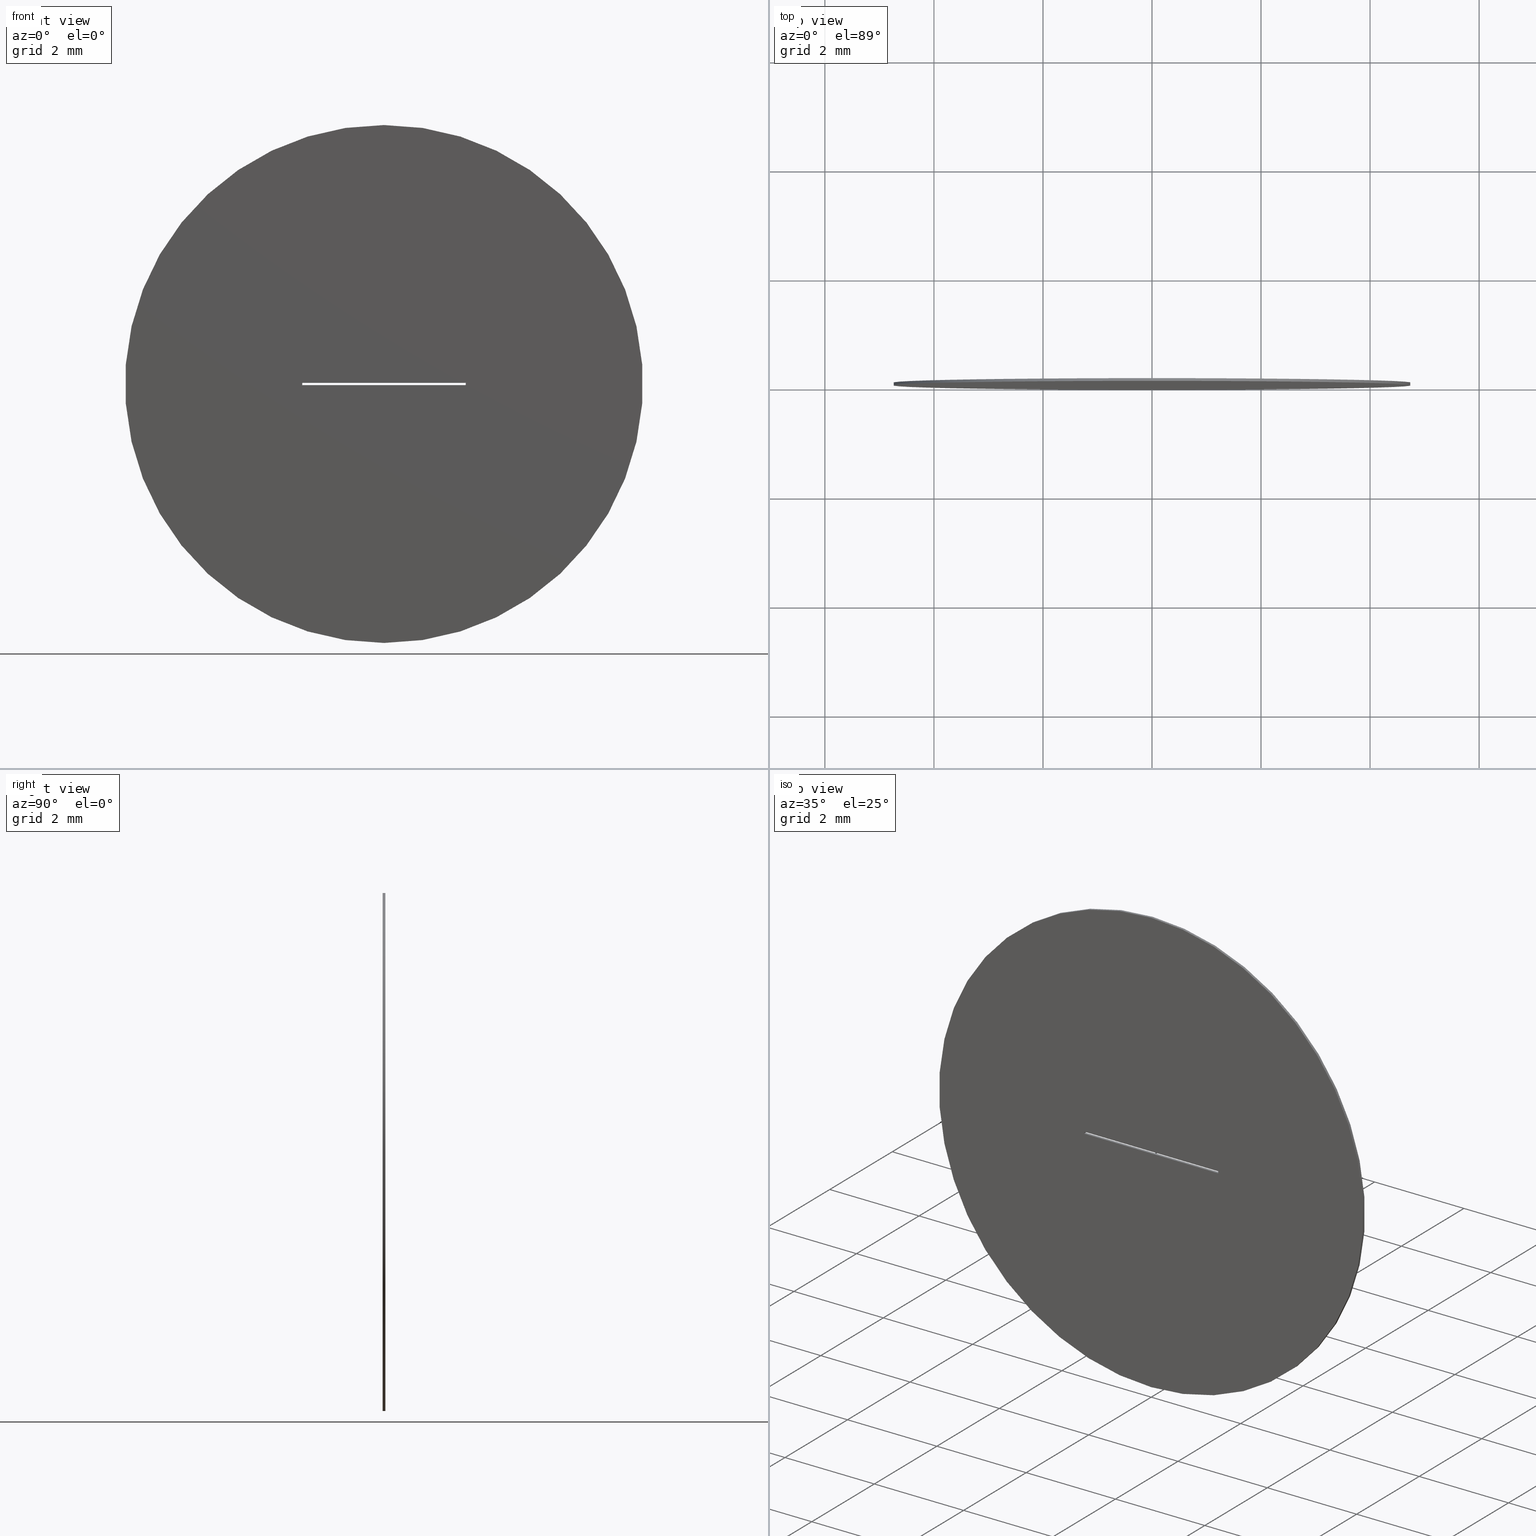
[diagram: canonical four-view strip — front | top / right | iso, engineering-drawing reading convention]
A machine part, canonical four-view strip (front | top / right | iso — engineering-drawing reading convention). The complete STEP part file that produces these views, byte-faithful:
ISO-10303-21;
HEADER;
FILE_DESCRIPTION (( 'STEP AP203' ),
    '1' );
FILE_NAME ('1.5.4.6-ZXG-9.5-40.STEP',
    '2024-05-29T06:48:43',
    ( '' ),
    ( '' ),
    'SwSTEP 2.0',
    'SolidWorks 2021',
    '' );
FILE_SCHEMA (( 'CONFIG_CONTROL_DESIGN' ));
ENDSEC;

DATA;
#1 = VERTEX_POINT ( 'NONE', #149 ) ;
#2 = PRODUCT_DEFINITION ( 'δ֪', '', #209, #8 ) ;
#3 = DIRECTION ( 'NONE',  ( 0.000000000000000000, 0.000000000000000000, 1.000000000000000000 ) ) ;
#4 = VECTOR ( 'NONE', #190, 1000.000000000000000 ) ;
#5 = AXIS2_PLACEMENT_3D ( 'NONE', #64, #42, #48 ) ;
#6 = EDGE_LOOP ( 'NONE', ( #270, #183, #268, #31 ) ) ;
#7 = DIRECTION ( 'NONE',  ( 0.000000000000000000, 0.000000000000000000, 1.000000000000000000 ) ) ;
#8 = DESIGN_CONTEXT ( 'detailed design', #235, 'design' ) ;
#9 = DIRECTION ( 'NONE',  ( 0.000000000000000000, 1.000000000000000000, 0.000000000000000000 ) ) ;
#10 = CARTESIAN_POINT ( 'NONE',  ( -1.500000000000000222, 0.05000000000000000278, -0.01999999999999999695 ) ) ;
#11 = CC_DESIGN_DATE_AND_TIME_ASSIGNMENT ( #233, #95, ( #35 ) ) ;
#12 = AXIS2_PLACEMENT_3D ( 'NONE', #218, #219, #191 ) ;
#13 = APPROVAL_PERSON_ORGANIZATION ( #303, #66, #165 ) ;
#14 = CARTESIAN_POINT ( 'NONE',  ( 1.499999999999999778, 0.05000000000000000278, -0.01999999999999999695 ) ) ;
#15 = EDGE_CURVE ( 'NONE', #1, #94, #248, .T. ) ;
#16 = DIRECTION ( 'NONE',  ( 0.000000000000000000, 0.000000000000000000, 1.000000000000000000 ) ) ;
#17 = PLANE ( 'NONE',  #199 ) ;
#18 = PRODUCT ( '1.5.4.6-ZXG-9.5-40', '1.5.4.6-ZXG-9.5-40', '', ( #188 ) ) ;
#19 = EDGE_LOOP ( 'NONE', ( #59, #187, #50, #96 ) ) ;
#20 = PERSON_AND_ORGANIZATION_ROLE ( 'creator' ) ;
#21 = DATE_AND_TIME ( #65, #113 ) ;
#22 = CALENDAR_DATE ( 2024, 29, 5 ) ;
#23 = ORIENTED_EDGE ( 'NONE', *, *, #70, .F. ) ;
#24 = ADVANCED_BREP_SHAPE_REPRESENTATION ( '1.5.4.6-ZXG-9.5-40', ( #140, #103 ), #163 ) ;
#25 = APPROVAL_DATE_TIME ( #91, #210 ) ;
#26 = AXIS2_PLACEMENT_3D ( 'NONE', #134, #62, #226 ) ;
#27 = ORIENTED_EDGE ( 'NONE', *, *, #247, .T. ) ;
#28 = PRODUCT_RELATED_PRODUCT_CATEGORY ( 'detail', '', ( #18 ) ) ;
#29 = CARTESIAN_POINT ( 'NONE',  ( 0.000000000000000000, 0.000000000000000000, 0.000000000000000000 ) ) ;
#30 = LINE ( 'NONE', #216, #43 ) ;
#31 = ORIENTED_EDGE ( 'NONE', *, *, #256, .T. ) ;
#32 = EDGE_LOOP ( 'NONE', ( #307, #126, #185, #249 ) ) ;
#33 = FACE_BOUND ( 'NONE', #6, .T. ) ;
#34 = CARTESIAN_POINT ( 'NONE',  ( 1.499999999999999778, 0.000000000000000000, 0.02000000000000000389 ) ) ;
#35 = SECURITY_CLASSIFICATION ( '', '', #306 ) ;
#36 = CC_DESIGN_PERSON_AND_ORGANIZATION_ASSIGNMENT ( #305, #164, ( #18 ) ) ;
#37 = FACE_OUTER_BOUND ( 'NONE', #234, .T. ) ;
#38 = DIRECTION ( 'NONE',  ( 1.000000000000000000, 0.000000000000000000, -0.000000000000000000 ) ) ;
#39 = FACE_OUTER_BOUND ( 'NONE', #32, .T. ) ;
#40 = VECTOR ( 'NONE', #130, 1000.000000000000000 ) ;
#41 = CC_DESIGN_APPROVAL ( #250, ( #2 ) ) ;
#42 = DIRECTION ( 'NONE',  ( 0.000000000000000000, 1.000000000000000000, 0.000000000000000000 ) ) ;
#43 = VECTOR ( 'NONE', #171, 1000.000000000000000 ) ;
#44 = VECTOR ( 'NONE', #211, 1000.000000000000000 ) ;
#45 = PRODUCT_DEFINITION_SHAPE ( 'NONE', 'NONE',  #2 ) ;
#46 = APPLICATION_PROTOCOL_DEFINITION ( 'international standard', 'config_control_design', 1994, #228 ) ;
#47 = ORIENTED_EDGE ( 'NONE', *, *, #256, .F. ) ;
#48 = DIRECTION ( 'NONE',  ( 0.000000000000000000, -0.000000000000000000, 1.000000000000000000 ) ) ;
#49 = PERSON_AND_ORGANIZATION_ROLE ( 'design_supplier' ) ;
#50 = ORIENTED_EDGE ( 'NONE', *, *, #152, .T. ) ;
#51 = DIRECTION ( 'NONE',  ( 1.000000000000000000, 0.000000000000000000, 0.000000000000000000 ) ) ;
#52 = ORIENTED_EDGE ( 'NONE', *, *, #293, .T. ) ;
#53 =( LENGTH_UNIT ( ) NAMED_UNIT ( * ) SI_UNIT ( .MILLI., .METRE. ) );
#54 = COORDINATED_UNIVERSAL_TIME_OFFSET ( 8, 0, .AHEAD. ) ;
#55 = ORIENTED_EDGE ( 'NONE', *, *, #298, .F. ) ;
#56 = DIRECTION ( 'NONE',  ( -1.000000000000000000, -0.000000000000000000, -0.000000000000000000 ) ) ;
#57 = CC_DESIGN_APPROVAL ( #66, ( #209 ) ) ;
#58 = VERTEX_POINT ( 'NONE', #174 ) ;
#59 = ORIENTED_EDGE ( 'NONE', *, *, #109, .F. ) ;
#60 = VECTOR ( 'NONE', #56, 1000.000000000000000 ) ;
#61 = CARTESIAN_POINT ( 'NONE',  ( -1.500000000000000222, 0.000000000000000000, 0.02000000000000000389 ) ) ;
#62 = DIRECTION ( 'NONE',  ( 0.000000000000000000, 1.000000000000000000, 0.000000000000000000 ) ) ;
#63 = CC_DESIGN_APPROVAL ( #210, ( #35 ) ) ;
#64 = CARTESIAN_POINT ( 'NONE',  ( 0.000000000000000000, 0.05000000000000000278, 0.000000000000000000 ) ) ;
#65 = CALENDAR_DATE ( 2024, 29, 5 ) ;
#66 = APPROVAL ( #287, 'δָ��' ) ;
#67 = DATE_AND_TIME ( #262, #186 ) ;
#68 = DATE_AND_TIME ( #284, #77 ) ;
#69 = ORIENTED_EDGE ( 'NONE', *, *, #298, .T. ) ;
#70 = EDGE_CURVE ( 'NONE', #169, #138, #124, .T. ) ;
#71 = LINE ( 'NONE', #119, #217 ) ;
#72 = VERTEX_POINT ( 'NONE', #104 ) ;
#73 = LOCAL_TIME ( 14, 48, 43.00000000000000000, #264 ) ;
#74 = LINE ( 'NONE', #193, #136 ) ;
#75 = ORIENTED_EDGE ( 'NONE', *, *, #247, .F. ) ;
#76 = ORIENTED_EDGE ( 'NONE', *, *, #277, .F. ) ;
#77 = LOCAL_TIME ( 14, 48, 43.00000000000000000, #54 ) ;
#78 = FACE_OUTER_BOUND ( 'NONE', #166, .T. ) ;
#79 = EDGE_CURVE ( 'NONE', #1, #282, #151, .T. ) ;
#80 = DIRECTION ( 'NONE',  ( 0.000000000000000000, 1.000000000000000000, 0.000000000000000000 ) ) ;
#81 = DIRECTION ( 'NONE',  ( 1.000000000000000000, 0.000000000000000000, 0.000000000000000000 ) ) ;
#82 = LOCAL_TIME ( 14, 48, 43.00000000000000000, #212 ) ;
#83 = DIRECTION ( 'NONE',  ( 0.000000000000000000, 1.000000000000000000, 0.000000000000000000 ) ) ;
#84 = EDGE_CURVE ( 'NONE', #92, #58, #173, .T. ) ;
#85 = CARTESIAN_POINT ( 'NONE',  ( 1.499999999999999778, 0.05000000000000000278, -0.01999999999999999695 ) ) ;
#86 = LINE ( 'NONE', #223, #143 ) ;
#87 = EDGE_CURVE ( 'NONE', #138, #169, #276, .T. ) ;
#88 = CARTESIAN_POINT ( 'NONE',  ( 0.000000000000000000, 0.05000000000000000278, 0.000000000000000000 ) ) ;
#89 = ORIENTED_EDGE ( 'NONE', *, *, #293, .F. ) ;
#90 =( NAMED_UNIT ( * ) SI_UNIT ( $, .STERADIAN. ) SOLID_ANGLE_UNIT ( ) );
#91 = DATE_AND_TIME ( #239, #82 ) ;
#92 = VERTEX_POINT ( 'NONE', #99 ) ;
#93 = APPROVAL_STATUS ( 'not_yet_approved' ) ;
#94 = VERTEX_POINT ( 'NONE', #34 ) ;
#95 = DATE_TIME_ROLE ( 'classification_date' ) ;
#96 = ORIENTED_EDGE ( 'NONE', *, *, #269, .T. ) ;
#97 = AXIS2_PLACEMENT_3D ( 'NONE', #88, #137, #214 ) ;
#98 = EDGE_LOOP ( 'NONE', ( #120, #142 ) ) ;
#99 = CARTESIAN_POINT ( 'NONE',  ( 1.499999999999999778, 0.000000000000000000, -0.01999999999999999695 ) ) ;
#100 = UNCERTAINTY_MEASURE_WITH_UNIT (LENGTH_MEASURE( 1.000000000000000082E-05 ), #53, 'distance_accuracy_value', 'NONE');
#101 = DIRECTION ( 'NONE',  ( 1.000000000000000000, 0.000000000000000000, 0.000000000000000000 ) ) ;
#102 = DIRECTION ( 'NONE',  ( 0.000000000000000000, -0.000000000000000000, 1.000000000000000000 ) ) ;
#103 = AXIS2_PLACEMENT_3D ( 'NONE', #29, #310, #285 ) ;
#104 = CARTESIAN_POINT ( 'NONE',  ( 0.000000000000000000, 0.000000000000000000, -4.750000000000000000 ) ) ;
#105 = CYLINDRICAL_SURFACE ( 'NONE', #208, 4.750000000000000000 ) ;
#106 = DIRECTION ( 'NONE',  ( -1.000000000000000000, -0.000000000000000000, -0.000000000000000000 ) ) ;
#107 = VECTOR ( 'NONE', #291, 1000.000000000000000 ) ;
#108 = VECTOR ( 'NONE', #253, 1000.000000000000000 ) ;
#109 = EDGE_CURVE ( 'NONE', #58, #265, #275, .T. ) ;
#110 = LINE ( 'NONE', #154, #108 ) ;
#111 = DIRECTION ( 'NONE',  ( -0.000000000000000000, -1.000000000000000000, -0.000000000000000000 ) ) ;
#112 = CARTESIAN_POINT ( 'NONE',  ( -1.500000000000000222, 0.05000000000000000278, -0.01999999999999999695 ) ) ;
#113 = LOCAL_TIME ( 14, 48, 43.00000000000000000, #121 ) ;
#114 = PERSON_AND_ORGANIZATION ( #202, #221 ) ;
#115 = EDGE_LOOP ( 'NONE', ( #75, #271, #89, #263 ) ) ;
#116 = LINE ( 'NONE', #141, #44 ) ;
#117 = PERSON_AND_ORGANIZATION ( #202, #221 ) ;
#118 = VERTEX_POINT ( 'NONE', #150 ) ;
#119 = CARTESIAN_POINT ( 'NONE',  ( -1.500000000000000222, 0.05000000000000000278, 0.02000000000000000389 ) ) ;
#120 = ORIENTED_EDGE ( 'NONE', *, *, #87, .T. ) ;
#121 = COORDINATED_UNIVERSAL_TIME_OFFSET ( 8, 0, .AHEAD. ) ;
#122 = CARTESIAN_POINT ( 'NONE',  ( -1.500000000000000222, 0.05000000000000000278, -0.01999999999999999695 ) ) ;
#123 = ADVANCED_FACE ( 'NONE', ( #292 ), #172, .T. ) ;
#124 = CIRCLE ( 'NONE', #156, 4.750000000000000000 ) ;
#125 = CARTESIAN_POINT ( 'NONE',  ( 0.000000000000000000, 0.05000000000000000278, 0.000000000000000000 ) ) ;
#126 = ORIENTED_EDGE ( 'NONE', *, *, #15, .F. ) ;
#127 = EDGE_CURVE ( 'NONE', #94, #92, #74, .T. ) ;
#128 = VERTEX_POINT ( 'NONE', #10 ) ;
#129 = DIRECTION ( 'NONE',  ( 0.000000000000000000, 0.000000000000000000, -1.000000000000000000 ) ) ;
#130 = DIRECTION ( 'NONE',  ( -0.000000000000000000, -1.000000000000000000, -0.000000000000000000 ) ) ;
#131 = LINE ( 'NONE', #112, #231 ) ;
#132 = FACE_OUTER_BOUND ( 'NONE', #145, .T. ) ;
#133 = AXIS2_PLACEMENT_3D ( 'NONE', #220, #9, #102 ) ;
#134 = CARTESIAN_POINT ( 'NONE',  ( 0.000000000000000000, 0.000000000000000000, 0.000000000000000000 ) ) ;
#135 = CARTESIAN_POINT ( 'NONE',  ( 0.000000000000000000, 0.05000000000000000278, -4.750000000000000000 ) ) ;
#136 = VECTOR ( 'NONE', #294, 1000.000000000000000 ) ;
#137 = DIRECTION ( 'NONE',  ( -0.000000000000000000, -1.000000000000000000, -0.000000000000000000 ) ) ;
#138 = VERTEX_POINT ( 'NONE', #272 ) ;
#139 = ADVANCED_FACE ( 'NONE', ( #195, #33 ), #175, .F. ) ;
#140 = MANIFOLD_SOLID_BREP ( '͹̨-����1', #170 ) ;
#141 = CARTESIAN_POINT ( 'NONE',  ( 5.817072295949927426E-16, 0.05000000000000000278, 4.750000000000000000 ) ) ;
#142 = ORIENTED_EDGE ( 'NONE', *, *, #70, .T. ) ;
#143 = VECTOR ( 'NONE', #111, 1000.000000000000000 ) ;
#144 = CIRCLE ( 'NONE', #26, 4.750000000000000000 ) ;
#145 = EDGE_LOOP ( 'NONE', ( #215, #240, #27, #304 ) ) ;
#146 = ADVANCED_FACE ( 'NONE', ( #78 ), #296, .T. ) ;
#147 = CARTESIAN_POINT ( 'NONE',  ( -1.500000000000000222, 0.05000000000000000278, 0.02000000000000000389 ) ) ;
#148 = ORIENTED_EDGE ( 'NONE', *, *, #269, .F. ) ;
#149 = CARTESIAN_POINT ( 'NONE',  ( 1.499999999999999778, 0.05000000000000000278, 0.02000000000000000389 ) ) ;
#150 = CARTESIAN_POINT ( 'NONE',  ( 5.817072295949927426E-16, 0.000000000000000000, 4.750000000000000000 ) ) ;
#151 = LINE ( 'NONE', #295, #107 ) ;
#152 = EDGE_CURVE ( 'NONE', #128, #260, #30, .T. ) ;
#153 = PLANE ( 'NONE',  #162 ) ;
#154 = CARTESIAN_POINT ( 'NONE',  ( -1.500000000000000222, 0.05000000000000000278, 0.02000000000000000389 ) ) ;
#155 = CARTESIAN_POINT ( 'NONE',  ( 5.817072295949927426E-16, 0.05000000000000000278, 4.750000000000000000 ) ) ;
#156 = AXIS2_PLACEMENT_3D ( 'NONE', #125, #80, #3 ) ;
#157 = CC_DESIGN_DATE_AND_TIME_ASSIGNMENT ( #68, #236, ( #2 ) ) ;
#158 = CARTESIAN_POINT ( 'NONE',  ( 0.000000000000000000, 0.000000000000000000, 0.000000000000000000 ) ) ;
#159 =( NAMED_UNIT ( * ) PLANE_ANGLE_UNIT ( ) SI_UNIT ( $, .RADIAN. ) );
#160 = APPROVAL_ROLE ( '' ) ;
#161 = ORIENTED_EDGE ( 'NONE', *, *, #266, .F. ) ;
#162 = AXIS2_PLACEMENT_3D ( 'NONE', #297, #252, #201 ) ;
#163 =( GEOMETRIC_REPRESENTATION_CONTEXT ( 3 ) GLOBAL_UNCERTAINTY_ASSIGNED_CONTEXT ( ( #100 ) ) GLOBAL_UNIT_ASSIGNED_CONTEXT ( ( #53, #159, #90 ) ) REPRESENTATION_CONTEXT ( 'NONE', 'WORKASPACE' ) );
#164 = PERSON_AND_ORGANIZATION_ROLE ( 'design_owner' ) ;
#165 = APPROVAL_ROLE ( '' ) ;
#166 = EDGE_LOOP ( 'NONE', ( #47, #148, #52, #289 ) ) ;
#167 = APPLICATION_PROTOCOL_DEFINITION ( 'international standard', 'config_control_design', 1994, #235 ) ;
#168 = PERSON_AND_ORGANIZATION_ROLE ( 'classification_officer' ) ;
#169 = VERTEX_POINT ( 'NONE', #155 ) ;
#170 = CLOSED_SHELL ( 'NONE', ( #308, #283, #139, #197, #176, #192, #123, #146 ) ) ;
#171 = DIRECTION ( 'NONE',  ( 0.000000000000000000, 0.000000000000000000, 1.000000000000000000 ) ) ;
#172 = PLANE ( 'NONE',  #258 ) ;
#173 = LINE ( 'NONE', #251, #60 ) ;
#174 = CARTESIAN_POINT ( 'NONE',  ( -1.500000000000000222, 0.000000000000000000, -0.01999999999999999695 ) ) ;
#175 = PLANE ( 'NONE',  #133 ) ;
#176 = ADVANCED_FACE ( 'NONE', ( #39 ), #153, .T. ) ;
#177 = AXIS2_PLACEMENT_3D ( 'NONE', #147, #274, #245 ) ;
#178 = DIRECTION ( 'NONE',  ( 0.000000000000000000, 0.000000000000000000, 1.000000000000000000 ) ) ;
#179 = FACE_OUTER_BOUND ( 'NONE', #98, .T. ) ;
#180 = PLANE ( 'NONE',  #5 ) ;
#181 = CIRCLE ( 'NONE', #259, 4.750000000000000000 ) ;
#182 = FACE_OUTER_BOUND ( 'NONE', #309, .T. ) ;
#183 = ORIENTED_EDGE ( 'NONE', *, *, #84, .T. ) ;
#184 = CC_DESIGN_PERSON_AND_ORGANIZATION_ASSIGNMENT ( #302, #189, ( #2 ) ) ;
#185 = ORIENTED_EDGE ( 'NONE', *, *, #79, .T. ) ;
#186 = LOCAL_TIME ( 14, 48, 43.00000000000000000, #267 ) ;
#187 = ORIENTED_EDGE ( 'NONE', *, *, #237, .F. ) ;
#188 = MECHANICAL_CONTEXT ( 'NONE', #228, 'mechanical' ) ;
#189 = PERSON_AND_ORGANIZATION_ROLE ( 'creator' ) ;
#190 = DIRECTION ( 'NONE',  ( -0.000000000000000000, -1.000000000000000000, -0.000000000000000000 ) ) ;
#191 = DIRECTION ( 'NONE',  ( 0.000000000000000000, 0.000000000000000000, 1.000000000000000000 ) ) ;
#192 = ADVANCED_FACE ( 'NONE', ( #132 ), #17, .T. ) ;
#193 = CARTESIAN_POINT ( 'NONE',  ( 1.499999999999999778, 0.000000000000000000, -0.01999999999999999695 ) ) ;
#194 = APPROVAL_PERSON_ORGANIZATION ( #311, #210, #160 ) ;
#195 = FACE_OUTER_BOUND ( 'NONE', #288, .T. ) ;
#196 = CARTESIAN_POINT ( 'NONE',  ( -1.500000000000000222, 0.000000000000000000, -0.01999999999999999695 ) ) ;
#197 = ADVANCED_FACE ( 'NONE', ( #37 ), #105, .T. ) ;
#198 = LINE ( 'NONE', #135, #279 ) ;
#199 = AXIS2_PLACEMENT_3D ( 'NONE', #280, #16, #38 ) ;
#200 = CARTESIAN_POINT ( 'NONE',  ( -1.500000000000000222, 0.05000000000000000278, 0.02000000000000000389 ) ) ;
#201 = DIRECTION ( 'NONE',  ( 0.000000000000000000, 0.000000000000000000, 1.000000000000000000 ) ) ;
#202 = PERSON ( 'δָ��', 'δָ��', 'δָ��', ('δָ��'), ('δָ��'), ('δָ��') ) ;
#203 = EDGE_CURVE ( 'NONE', #282, #92, #224, .T. ) ;
#204 = FACE_BOUND ( 'NONE', #115, .T. ) ;
#205 = APPROVAL_DATE_TIME ( #21, #250 ) ;
#206 = PERSON_AND_ORGANIZATION ( #202, #221 ) ;
#207 = APPROVAL_DATE_TIME ( #67, #66 ) ;
#208 = AXIS2_PLACEMENT_3D ( 'NONE', #255, #300, #278 ) ;
#209 = PRODUCT_DEFINITION_FORMATION_WITH_SPECIFIED_SOURCE ( '�κ�', '', #18, .NOT_KNOWN. ) ;
#210 = APPROVAL ( #93, 'δָ��' ) ;
#211 = DIRECTION ( 'NONE',  ( -0.000000000000000000, -1.000000000000000000, -0.000000000000000000 ) ) ;
#212 = COORDINATED_UNIVERSAL_TIME_OFFSET ( 8, 0, .AHEAD. ) ;
#213 = ORIENTED_EDGE ( 'NONE', *, *, #277, .T. ) ;
#214 = DIRECTION ( 'NONE',  ( 0.000000000000000000, 0.000000000000000000, -1.000000000000000000 ) ) ;
#215 = ORIENTED_EDGE ( 'NONE', *, *, #84, .F. ) ;
#216 = CARTESIAN_POINT ( 'NONE',  ( -1.500000000000000222, 0.05000000000000000278, -0.01999999999999999695 ) ) ;
#217 = VECTOR ( 'NONE', #51, 1000.000000000000000 ) ;
#218 = CARTESIAN_POINT ( 'NONE',  ( 0.000000000000000000, 0.05000000000000000278, 0.000000000000000000 ) ) ;
#219 = DIRECTION ( 'NONE',  ( 0.000000000000000000, 1.000000000000000000, 0.000000000000000000 ) ) ;
#220 = CARTESIAN_POINT ( 'NONE',  ( 0.000000000000000000, 0.000000000000000000, 0.000000000000000000 ) ) ;
#221 = ORGANIZATION ( 'δָ��', 'δָ��', '' ) ;
#222 = CARTESIAN_POINT ( 'NONE',  ( 1.499999999999999778, 0.05000000000000000278, 0.02000000000000000389 ) ) ;
#223 = CARTESIAN_POINT ( 'NONE',  ( -1.500000000000000222, 0.05000000000000000278, -0.01999999999999999695 ) ) ;
#224 = LINE ( 'NONE', #14, #40 ) ;
#225 = CC_DESIGN_PERSON_AND_ORGANIZATION_ASSIGNMENT ( #206, #49, ( #209 ) ) ;
#226 = DIRECTION ( 'NONE',  ( 0.000000000000000000, 0.000000000000000000, 1.000000000000000000 ) ) ;
#227 = LINE ( 'NONE', #61, #242 ) ;
#228 = APPLICATION_CONTEXT ( 'configuration controlled 3d designs of mechanical parts and assemblies' ) ;
#229 = APPROVAL_ROLE ( '' ) ;
#230 = EDGE_CURVE ( 'NONE', #138, #72, #198, .T. ) ;
#231 = VECTOR ( 'NONE', #106, 1000.000000000000000 ) ;
#232 = ORIENTED_EDGE ( 'NONE', *, *, #266, .T. ) ;
#233 = DATE_AND_TIME ( #22, #73 ) ;
#234 = EDGE_LOOP ( 'NONE', ( #55, #244, #246, #213 ) ) ;
#235 = APPLICATION_CONTEXT ( 'configuration controlled 3d designs of mechanical parts and assemblies' ) ;
#236 = DATE_TIME_ROLE ( 'creation_date' ) ;
#237 = EDGE_CURVE ( 'NONE', #128, #58, #86, .T. ) ;
#238 = CYLINDRICAL_SURFACE ( 'NONE', #97, 4.750000000000000000 ) ;
#239 = CALENDAR_DATE ( 2024, 29, 5 ) ;
#240 = ORIENTED_EDGE ( 'NONE', *, *, #203, .F. ) ;
#241 = VECTOR ( 'NONE', #7, 1000.000000000000000 ) ;
#242 = VECTOR ( 'NONE', #81, 1000.000000000000000 ) ;
#243 = APPROVAL_STATUS ( 'not_yet_approved' ) ;
#244 = ORIENTED_EDGE ( 'NONE', *, *, #87, .F. ) ;
#245 = DIRECTION ( 'NONE',  ( -1.000000000000000000, 0.000000000000000000, -0.000000000000000000 ) ) ;
#246 = ORIENTED_EDGE ( 'NONE', *, *, #230, .T. ) ;
#247 = EDGE_CURVE ( 'NONE', #282, #128, #131, .T. ) ;
#248 = LINE ( 'NONE', #222, #4 ) ;
#249 = ORIENTED_EDGE ( 'NONE', *, *, #203, .T. ) ;
#250 = APPROVAL ( #243, 'δָ��' ) ;
#251 = CARTESIAN_POINT ( 'NONE',  ( -1.500000000000000222, 0.000000000000000000, -0.01999999999999999695 ) ) ;
#252 = DIRECTION ( 'NONE',  ( -1.000000000000000000, 0.000000000000000000, 0.000000000000000000 ) ) ;
#253 = DIRECTION ( 'NONE',  ( -0.000000000000000000, -1.000000000000000000, -0.000000000000000000 ) ) ;
#254 = DIRECTION ( 'NONE',  ( -0.000000000000000000, -1.000000000000000000, -0.000000000000000000 ) ) ;
#255 = CARTESIAN_POINT ( 'NONE',  ( 0.000000000000000000, 0.05000000000000000278, 0.000000000000000000 ) ) ;
#256 = EDGE_CURVE ( 'NONE', #265, #94, #227, .T. ) ;
#257 = SHAPE_DEFINITION_REPRESENTATION ( #45, #24 ) ;
#258 = AXIS2_PLACEMENT_3D ( 'NONE', #122, #101, #129 ) ;
#259 = AXIS2_PLACEMENT_3D ( 'NONE', #158, #83, #178 ) ;
#260 = VERTEX_POINT ( 'NONE', #200 ) ;
#261 = PERSON_AND_ORGANIZATION ( #202, #221 ) ;
#262 = CALENDAR_DATE ( 2024, 29, 5 ) ;
#263 = ORIENTED_EDGE ( 'NONE', *, *, #152, .F. ) ;
#264 = COORDINATED_UNIVERSAL_TIME_OFFSET ( 8, 0, .AHEAD. ) ;
#265 = VERTEX_POINT ( 'NONE', #299 ) ;
#266 = EDGE_CURVE ( 'NONE', #118, #72, #181, .T. ) ;
#267 = COORDINATED_UNIVERSAL_TIME_OFFSET ( 8, 0, .AHEAD. ) ;
#268 = ORIENTED_EDGE ( 'NONE', *, *, #109, .T. ) ;
#269 = EDGE_CURVE ( 'NONE', #260, #265, #110, .T. ) ;
#270 = ORIENTED_EDGE ( 'NONE', *, *, #127, .T. ) ;
#271 = ORIENTED_EDGE ( 'NONE', *, *, #79, .F. ) ;
#272 = CARTESIAN_POINT ( 'NONE',  ( 0.000000000000000000, 0.05000000000000000278, -4.750000000000000000 ) ) ;
#273 = CC_DESIGN_PERSON_AND_ORGANIZATION_ASSIGNMENT ( #114, #20, ( #209 ) ) ;
#274 = DIRECTION ( 'NONE',  ( 0.000000000000000000, 0.000000000000000000, -1.000000000000000000 ) ) ;
#275 = LINE ( 'NONE', #196, #241 ) ;
#276 = CIRCLE ( 'NONE', #12, 4.750000000000000000 ) ;
#277 = EDGE_CURVE ( 'NONE', #72, #118, #144, .T. ) ;
#278 = DIRECTION ( 'NONE',  ( 0.000000000000000000, 0.000000000000000000, -1.000000000000000000 ) ) ;
#279 = VECTOR ( 'NONE', #254, 1000.000000000000000 ) ;
#280 = CARTESIAN_POINT ( 'NONE',  ( -1.500000000000000222, 0.05000000000000000278, -0.01999999999999999695 ) ) ;
#281 = CC_DESIGN_SECURITY_CLASSIFICATION ( #35, ( #209 ) ) ;
#282 = VERTEX_POINT ( 'NONE', #85 ) ;
#283 = ADVANCED_FACE ( 'NONE', ( #179, #204 ), #180, .T. ) ;
#284 = CALENDAR_DATE ( 2024, 29, 5 ) ;
#285 = DIRECTION ( 'NONE',  ( 1.000000000000000000, 0.000000000000000000, 0.000000000000000000 ) ) ;
#286 = ORIENTED_EDGE ( 'NONE', *, *, #230, .F. ) ;
#287 = APPROVAL_STATUS ( 'not_yet_approved' ) ;
#288 = EDGE_LOOP ( 'NONE', ( #76, #161 ) ) ;
#289 = ORIENTED_EDGE ( 'NONE', *, *, #15, .T. ) ;
#290 = CC_DESIGN_PERSON_AND_ORGANIZATION_ASSIGNMENT ( #117, #168, ( #35 ) ) ;
#291 = DIRECTION ( 'NONE',  ( -0.000000000000000000, -0.000000000000000000, -1.000000000000000000 ) ) ;
#292 = FACE_OUTER_BOUND ( 'NONE', #19, .T. ) ;
#293 = EDGE_CURVE ( 'NONE', #260, #1, #71, .T. ) ;
#294 = DIRECTION ( 'NONE',  ( -0.000000000000000000, -0.000000000000000000, -1.000000000000000000 ) ) ;
#295 = CARTESIAN_POINT ( 'NONE',  ( 1.499999999999999778, 0.05000000000000000278, -0.01999999999999999695 ) ) ;
#296 = PLANE ( 'NONE',  #177 ) ;
#297 = CARTESIAN_POINT ( 'NONE',  ( 1.499999999999999778, 0.05000000000000000278, -0.01999999999999999695 ) ) ;
#298 = EDGE_CURVE ( 'NONE', #169, #118, #116, .T. ) ;
#299 = CARTESIAN_POINT ( 'NONE',  ( -1.500000000000000222, 0.000000000000000000, 0.02000000000000000389 ) ) ;
#300 = DIRECTION ( 'NONE',  ( -0.000000000000000000, -1.000000000000000000, -0.000000000000000000 ) ) ;
#301 = APPROVAL_PERSON_ORGANIZATION ( #261, #250, #229 ) ;
#302 = PERSON_AND_ORGANIZATION ( #202, #221 ) ;
#303 = PERSON_AND_ORGANIZATION ( #202, #221 ) ;
#304 = ORIENTED_EDGE ( 'NONE', *, *, #237, .T. ) ;
#305 = PERSON_AND_ORGANIZATION ( #202, #221 ) ;
#306 = SECURITY_CLASSIFICATION_LEVEL ( 'unclassified' ) ;
#307 = ORIENTED_EDGE ( 'NONE', *, *, #127, .F. ) ;
#308 = ADVANCED_FACE ( 'NONE', ( #182 ), #238, .T. ) ;
#309 = EDGE_LOOP ( 'NONE', ( #23, #69, #232, #286 ) ) ;
#310 = DIRECTION ( 'NONE',  ( 0.000000000000000000, 0.000000000000000000, 1.000000000000000000 ) ) ;
#311 = PERSON_AND_ORGANIZATION ( #202, #221 ) ;
ENDSEC;
END-ISO-10303-21;
